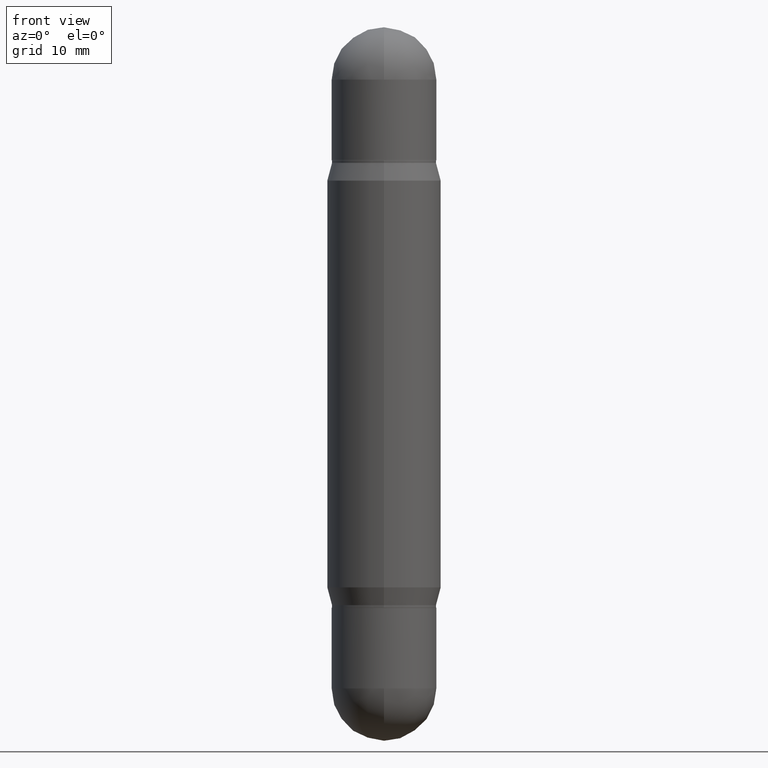
[diagram: clean part render]
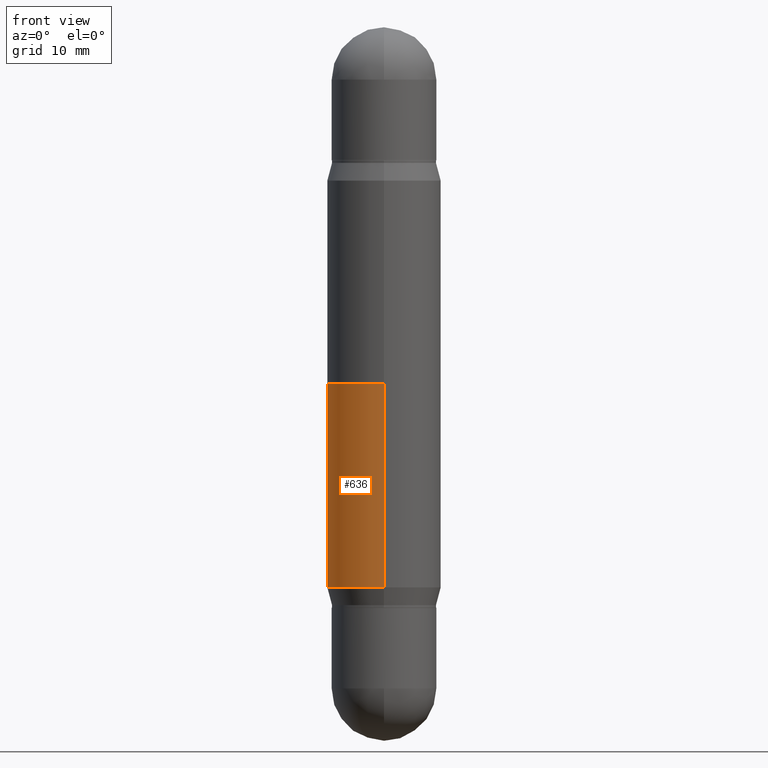
[diagram: same view with one face highlighted and labeled with its STEP entity id]
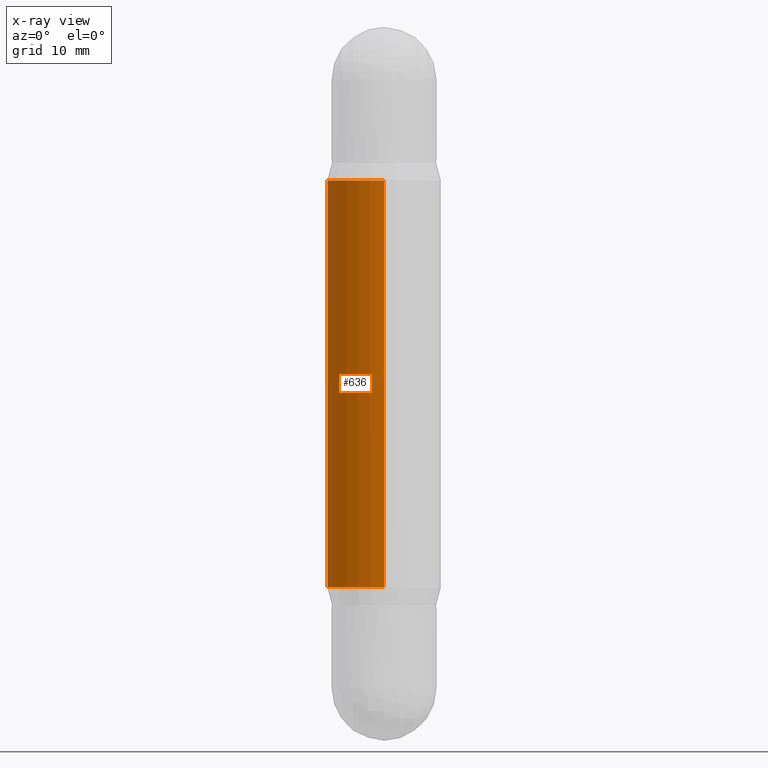
[diagram: x-ray of the same camera — body ghosted, the highlighted face saturated]
A machine part, front view. The second image highlights one B-rep face of the part: STEP entity #636.
The next image is the same camera in x-ray: the body ghosted, the highlighted face saturated — about 0% of this face is hidden behind the body in this view.
In plain terms, the highlighted cylindrical surface (partial cylindrical patch) has radius 5.9995 mm, axis along (-0, -0, -1).
Its self-contained STEP definition (entity closure, byte-faithful):
#7 = AXIS2_PLACEMENT_3D ( 'NONE', #640, #373, #712 ) ;
#34 = LINE ( 'NONE', #677, #587 ) ;
#55 = LINE ( 'NONE', #143, #1042 ) ;
#72 = VERTEX_POINT ( 'NONE', #790 ) ;
#98 = AXIS2_PLACEMENT_3D ( 'NONE', #1100, #405, #251 ) ;
#131 = FACE_OUTER_BOUND ( 'NONE', #329, .T. ) ;
#143 = CARTESIAN_POINT ( 'NONE',  ( -1.649375784469495934E-15, -0.2362000000000102629, -2.952799999999998537 ) ) ;
#181 = VERTEX_POINT ( 'NONE', #560 ) ;
#205 = CARTESIAN_POINT ( 'NONE',  ( -1.649375784469439333E-15, -0.2362000000000080979, -2.318265201631270589 ) ) ;
#209 = ORIENTED_EDGE ( 'NONE', *, *, #952, .F. ) ;
#213 = CIRCLE ( 'NONE', #7, 0.2361999999999999933 ) ;
#226 = DIRECTION ( 'NONE',  ( -2.443493668867244593E-29, -3.476785957920772271E-15, -1.000000000000000000 ) ) ;
#251 = DIRECTION ( 'NONE',  ( -6.982962677686265922E-15, -1.000000000000000000, 3.469747663417777397E-15 ) ) ;
#298 = CYLINDRICAL_SURFACE ( 'NONE', #666, 0.2361999999999999933 ) ;
#300 = ORIENTED_EDGE ( 'NONE', *, *, #620, .T. ) ;
#329 = EDGE_LOOP ( 'NONE', ( #209, #300, #1116, #450 ) ) ;
#346 = VERTEX_POINT ( 'NONE', #931 ) ;
#373 = DIRECTION ( 'NONE',  ( 2.443493668867244874E-29, 3.476785957920772665E-15, 1.000000000000000000 ) ) ;
#405 = DIRECTION ( 'NONE',  ( -2.443493668867244874E-29, 3.494309847900201171E-15, 1.000000000000000000 ) ) ;
#450 = ORIENTED_EDGE ( 'NONE', *, *, #1094, .F. ) ;
#474 = DIRECTION ( 'NONE',  ( -2.443493668867244874E-29, -3.476785957920772665E-15, -1.000000000000000000 ) ) ;
#560 = CARTESIAN_POINT ( 'NONE',  ( 1.620449627073671761E-15, 0.2361999999999919164, -2.318265201631272365 ) ) ;
#587 = VECTOR ( 'NONE', #226, 39.37007874015748143 ) ;
#620 = EDGE_CURVE ( 'NONE', #346, #181, #34, .T. ) ;
#636 = ADVANCED_FACE ( 'NONE', ( #131 ), #298, .T. ) ;
#640 = CARTESIAN_POINT ( 'NONE',  ( 5.664666342941258736E-29, -2.232013947946112511E-15, -0.6345347983687283921 ) ) ;
#641 = CARTESIAN_POINT ( 'NONE',  ( 0.000000000000000000, -1.029212584771408642E-14, -2.952799999999999869 ) ) ;
#666 = AXIS2_PLACEMENT_3D ( 'NONE', #641, #474, #983 ) ;
#677 = CARTESIAN_POINT ( 'NONE',  ( 1.620449627073635473E-15, 0.2361999999999897237, -2.952800000000000757 ) ) ;
#712 = DIRECTION ( 'NONE',  ( -6.982962677686265922E-15, -1.000000000000000000, 3.469747663417777397E-15 ) ) ;
#740 = EDGE_CURVE ( 'NONE', #181, #971, #968, .T. ) ;
#790 = CARTESIAN_POINT ( 'NONE',  ( -1.649375784469439136E-15, -0.2362000000000022137, -0.6345347983687275040 ) ) ;
#830 = DIRECTION ( 'NONE',  ( -2.443493668867244593E-29, -3.476785957920772271E-15, -1.000000000000000000 ) ) ;
#931 = CARTESIAN_POINT ( 'NONE',  ( 1.620449627073692271E-15, 0.2361999999999977728, -0.6345347983687291693 ) ) ;
#952 = EDGE_CURVE ( 'NONE', #346, #72, #213, .T. ) ;
#968 = CIRCLE ( 'NONE', #98, 0.2361999999999999933 ) ;
#971 = VERTEX_POINT ( 'NONE', #205 ) ;
#983 = DIRECTION ( 'NONE',  ( -6.982962677686265922E-15, -1.000000000000000000, 4.626330217890369336E-15 ) ) ;
#1042 = VECTOR ( 'NONE', #830, 39.37007874015748143 ) ;
#1094 = EDGE_CURVE ( 'NONE', #72, #971, #55, .T. ) ;
#1100 = CARTESIAN_POINT ( 'NONE',  ( 5.664666342941258736E-29, -8.100736924104496665E-15, -2.318265201631271477 ) ) ;
#1116 = ORIENTED_EDGE ( 'NONE', *, *, #740, .T. ) ;